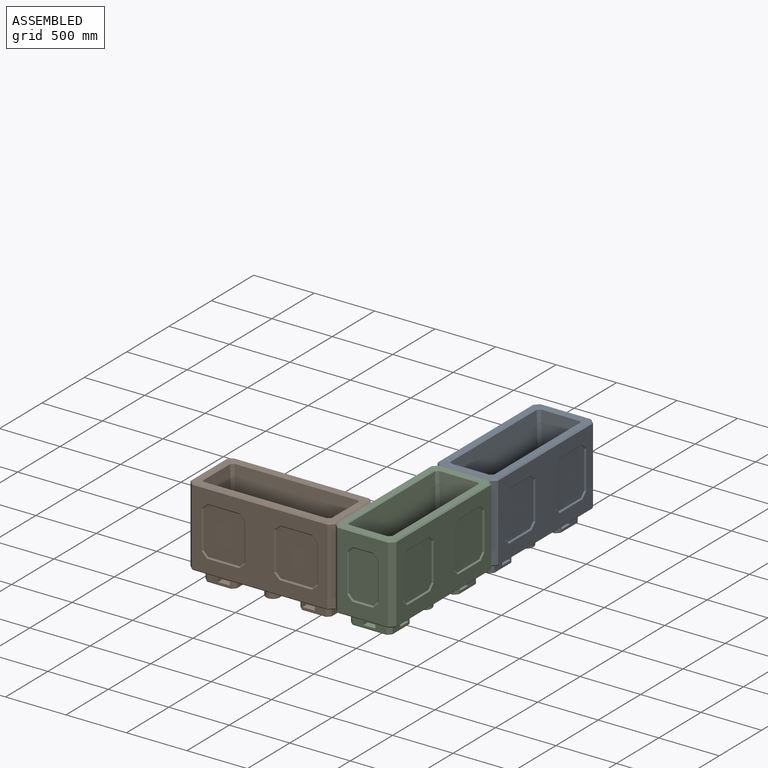
[diagram: assembled view]
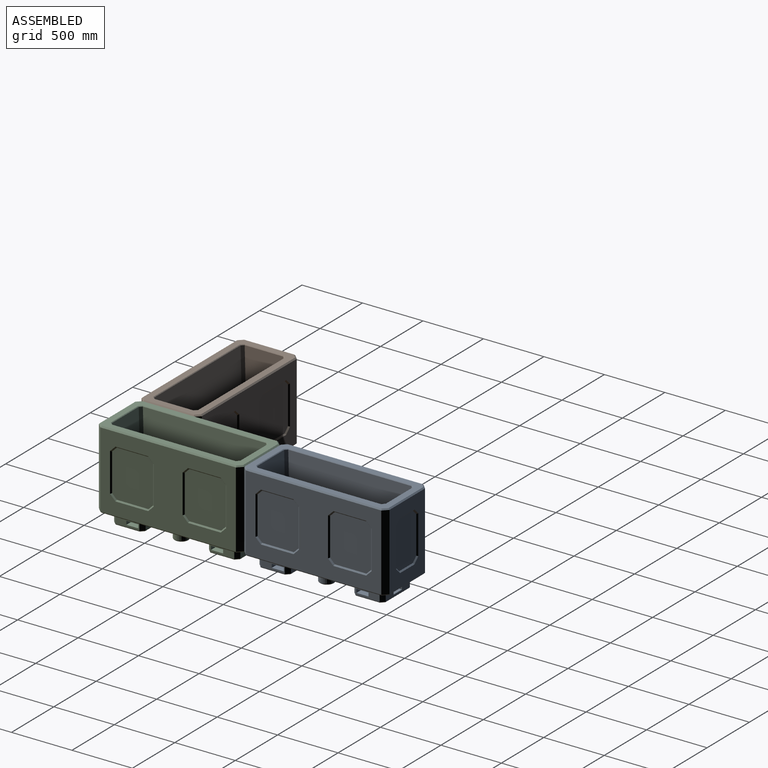
[diagram: assembled view, second angle]
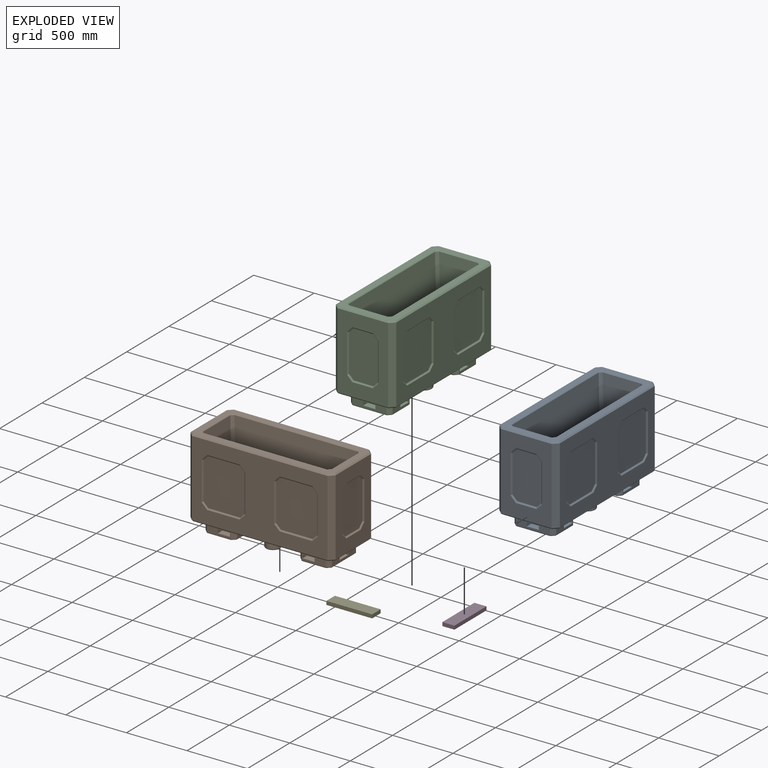
[diagram: exploded view]
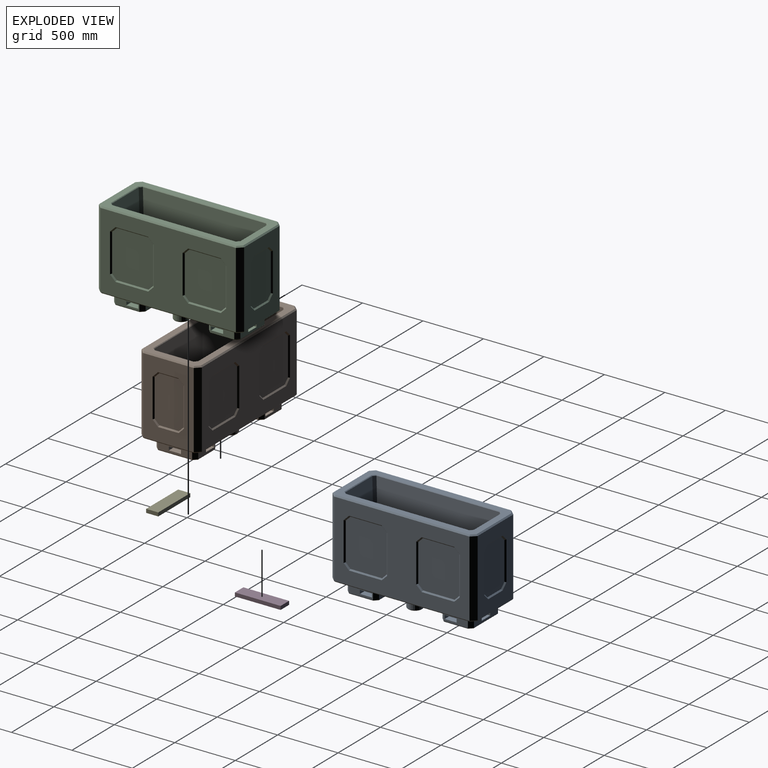
[diagram: exploded view, second angle]
ASSEMBLY  parts=5 mates=4
PART A: 211 faces, bbox 1200x500x750 mm
  f0: plane 200x60mm, normal (0,-1,0), area 9000mm2, adj f105,f106,f134,f154,f202,f203,f204,f205
  f1: plane 284x60mm, normal (-1,0,0), area 14040mm2, adj f106,f107,f129,f158,f197,f198,f199,f200
  f2: plane 200x60mm, normal (0,1,0), area 9000mm2, adj f103,f107,f137,f161,f192,f193,f194,f195
  f3: plane 200x60mm, normal (0,-1,0), area 9000mm2, adj f93,f94,f143,f152,f187,f188,f189,f190
  f4: plane 200x60mm, normal (0,1,0), area 9000mm2, adj f96,f97,f139,f147,f182,f183,f184,f185
  f5: plane 284x60mm, normal (1,0,0), area 14040mm2, adj f93,f97,f132,f151,f177,f178,f179,f180
  f6: plane 630x420mm, normal (1,0,0), area 162050mm2, adj f62,f63,f64,f65,f66,f67,f68,f69
  f7: plane 630x419.17mm, normal (-1,0,0), area 161528.1mm2, adj f53,f54,f55,f56,f57,f58,f59,f60
  f8: plane 1119.17x630mm, normal (0,1,0), area 417978.1mm2, adj f35,f36,f37,f38,f39,f40,f41,f42
  f9: plane 1120x630mm, normal (0,-1,0), area 418500mm2, adj f17,f18,f19,f20,f21,f22,f23,f24
  f10: plane 1180x480mm, normal (0,0,1), area 169250.2mm2, adj f75,f76,f77,f78,f79,f80,f81,f82
  f11: plane 1180x480mm, normal (0,0,-1), area 66674.5mm2, adj f83,f84,f85,f86,f87,f88,f89,f90
  f12: plane 1018.98x435.89mm, normal (0,-1,0.09), area 429172.6mm2, adj f109,f110,f167,f175
  f13: plane 435.89x318.98mm, normal (1,0,0.09), area 122883.7mm2, adj f110,f111,f164,f174
  f14: plane 1018.98x435.89mm, normal (0,1,0.09), area 429172.6mm2, adj f108,f111,f162,f170
  f15: plane 435.89x318.98mm, normal (-1,0,0.09), area 122883.7mm2, adj f108,f109,f166,f171
  f16: plane 962.93x262.93mm, normal (0,0,1), area 252881.5mm2, adj f108,f162,f163,f164,f165,f166,f167,f168
  f17: plane 320x10mm, normal (-0.71,-0.71,0), area 4466.9mm2, adj f9,f18,f24,f25
  f18: plane 49.14x49.14mm, normal (-0.5,-0.71,-0.5), area 841.4mm2, adj f9,f17,f19,f25
  f19: plane 270x10mm, normal (0,-0.71,-0.71), area 3759.8mm2, adj f9,f18,f20,f25
  f20: plane 49.14x49.14mm, normal (0.5,-0.71,-0.5), area 841.4mm2, adj f9,f19,f21,f25
  f21: plane 320x10mm, normal (0.71,-0.71,0), area 4466.9mm2, adj f9,f20,f22,f25
  f22: plane 49.14x49.14mm, normal (0.5,-0.71,0.5), area 841.4mm2, adj f9,f21,f23,f25
  f23: plane 270x10mm, normal (0,-0.71,0.71), area 3759.8mm2, adj f9,f22,f24,f25
  f24: plane 49.14x49.14mm, normal (-0.5,-0.71,0.5), area 841.4mm2, adj f9,f17,f23,f25
  f25: plane 390x340mm, normal (0,-1,0), area 129535.8mm2, adj f17,f18,f19,f20,f21,f22,f23,f24
  f26: plane 49.14x49.14mm, normal (0.5,-0.71,-0.5), area 841.4mm2, adj f9,f27,f33,f34
  f27: plane 320x10mm, normal (0.71,-0.71,0), area 4466.9mm2, adj f9,f26,f28,f34
  f28: plane 49.14x49.14mm, normal (0.5,-0.71,0.5), area 841.4mm2, adj f9,f27,f29,f34
  f29: plane 270x10mm, normal (0,-0.71,0.71), area 3759.8mm2, adj f9,f28,f30,f34
  f30: plane 49.14x49.14mm, normal (-0.5,-0.71,0.5), area 841.4mm2, adj f9,f29,f31,f34
  f31: plane 320x10mm, normal (-0.71,-0.71,0), area 4466.9mm2, adj f9,f30,f32,f34
  f32: plane 49.14x49.14mm, normal (-0.5,-0.71,-0.5), area 841.4mm2, adj f9,f31,f33,f34
  f33: plane 270x10mm, normal (0,-0.71,-0.71), area 3759.8mm2, adj f9,f26,f32,f34
  f34: plane 390x340mm, normal (0,-1,0), area 129535.8mm2, adj f26,f27,f28,f29,f30,f31,f32,f33
  f35: plane 49.14x49.14mm, normal (-0.5,0.71,-0.5), area 841.4mm2, adj f8,f36,f42,f43
  f36: plane 320x10mm, normal (-0.71,0.71,0), area 4466.9mm2, adj f8,f35,f37,f43
  f37: plane 49.14x49.14mm, normal (-0.5,0.71,0.5), area 841.4mm2, adj f8,f36,f38,f43
  f38: plane 270x10mm, normal (0,0.71,0.71), area 3759.8mm2, adj f8,f37,f39,f43
  f39: plane 49.14x49.14mm, normal (0.5,0.71,0.5), area 841.4mm2, adj f8,f38,f40,f43
  f40: plane 320x10mm, normal (0.71,0.71,0), area 4466.9mm2, adj f8,f39,f41,f43
  f41: plane 49.14x49.14mm, normal (0.5,0.71,-0.5), area 841.4mm2, adj f8,f40,f42,f43
  f42: plane 270x10mm, normal (0,0.71,-0.71), area 3759.8mm2, adj f8,f35,f41,f43
  f43: plane 390x340mm, normal (0,1,0), area 129535.8mm2, adj f35,f36,f37,f38,f39,f40,f41,f42
  f44: plane 49.14x49.14mm, normal (-0.5,0.71,-0.5), area 841.4mm2, adj f8,f45,f51,f52
  f45: plane 320x10mm, normal (-0.71,0.71,0), area 4466.9mm2, adj f8,f44,f46,f52
  f46: plane 49.14x49.14mm, normal (-0.5,0.71,0.5), area 841.4mm2, adj f8,f45,f47,f52
  f47: plane 270x10mm, normal (0,0.71,0.71), area 3759.8mm2, adj f8,f46,f48,f52
  f48: plane 49.14x49.14mm, normal (0.5,0.71,0.5), area 841.4mm2, adj f8,f47,f49,f52
  f49: plane 320x10mm, normal (0.71,0.71,0), area 4466.9mm2, adj f8,f48,f50,f52
  f50: plane 49.14x49.14mm, normal (0.5,0.71,-0.5), area 841.4mm2, adj f8,f49,f51,f52
  f51: plane 270x10mm, normal (0,0.71,-0.71), area 3759.8mm2, adj f8,f44,f50,f52
  f52: plane 390x340mm, normal (0,1,0), area 129535.8mm2, adj f44,f45,f46,f47,f48,f49,f50,f51
  f53: plane 170x10mm, normal (-0.71,0,-0.71), area 2345.6mm2, adj f7,f54,f60,f61
  f54: plane 49.14x49.14mm, normal (-0.71,-0.5,-0.5), area 841.4mm2, adj f7,f53,f55,f61
  f55: plane 320x10mm, normal (-0.71,-0.71,0), area 4466.9mm2, adj f7,f54,f56,f61
  f56: plane 49.14x49.14mm, normal (-0.71,-0.5,0.5), area 841.4mm2, adj f7,f55,f57,f61
  f57: plane 170x10mm, normal (-0.71,0,0.71), area 2345.6mm2, adj f7,f56,f58,f61
  f58: plane 49.14x49.14mm, normal (-0.71,0.5,0.5), area 841.4mm2, adj f7,f57,f59,f61
  f59: plane 320x10mm, normal (-0.71,0.71,0), area 4466.9mm2, adj f7,f58,f60,f61
  f60: plane 49.14x49.14mm, normal (-0.71,0.5,-0.5), area 841.4mm2, adj f7,f53,f59,f61
  f61: plane 390x240mm, normal (-1,0,0), area 90535.8mm2, adj f53,f54,f55,f56,f57,f58,f59,f60
  f62: plane 49.14x49.14mm, normal (0.71,0.5,-0.5), area 841.4mm2, adj f6,f63,f69,f70
  f63: plane 320x10mm, normal (0.71,0.71,0), area 4466.9mm2, adj f6,f62,f64,f70
  f64: plane 49.14x49.14mm, normal (0.71,0.5,0.5), area 841.4mm2, adj f6,f63,f65,f70
  f65: plane 170x10mm, normal (0.71,0,0.71), area 2345.6mm2, adj f6,f64,f66,f70
  f66: plane 49.14x49.14mm, normal (0.71,-0.5,0.5), area 841.4mm2, adj f6,f65,f67,f70
  f67: plane 320x10mm, normal (0.71,-0.71,0), area 4466.9mm2, adj f6,f66,f68,f70
  f68: plane 49.14x49.14mm, normal (0.71,-0.5,-0.5), area 841.4mm2, adj f6,f67,f69,f70
  f69: plane 170x10mm, normal (0.71,0,-0.71), area 2345.6mm2, adj f6,f62,f68,f70
  f70: plane 390x240mm, normal (1,0,0), area 90535.8mm2, adj f62,f63,f64,f65,f66,f67,f68,f69
  f71: plane 630x40mm, normal (0.71,-0.71,0), area 35638.2mm2, adj f6,f9,f75,f90
  f72: plane 630x40mm, normal (0.71,0.71,0), area 35638.2mm2, adj f6,f8,f78,f86
  f73: plane 630x40mm, normal (-0.71,-0.71,0), area 35638.2mm2, adj f7,f9,f79,f87
  f74: plane 630x38.83mm, normal (-0.71,0.71,0), area 34594.4mm2, adj f82,f83,f144,f145
  f75: plane 44.14x44.14mm, normal (0.5,-0.5,0.71), area 741.4mm2, adj f10,f71,f76,f77
  f76: plane 420x10mm, normal (0.71,0,0.71), area 5881.1mm2, adj f6,f10,f75,f78
  f77: plane 1120x10mm, normal (0,-0.71,0.71), area 15780.6mm2, adj f9,f10,f75,f79
  f78: plane 44.14x44.14mm, normal (0.5,0.5,0.71), area 741.4mm2, adj f10,f72,f76,f80
  f79: plane 44.14x44.14mm, normal (-0.5,-0.5,0.71), area 741.4mm2, adj f10,f73,f77,f81
  f80: plane 1119.94x10mm, normal (0,0.71,0.71), area 15780.6mm2, adj f8,f10,f78,f82,f144
  f81: plane 419.94x10mm, normal (-0.71,0,0.71), area 5881.1mm2, adj f7,f10,f79,f82,f145
  f82: plane 43.99x43.99mm, normal (-0.5,0.5,0.71), area 741.3mm2, adj f10,f74,f80,f81,f144,f145
  f83: plane 43.99x43.99mm, normal (-0.5,0.5,-0.71), area 741.3mm2, adj f11,f74,f84,f85,f144,f145
  f84: plane 1119.94x10mm, normal (0,0.71,-0.71), area 15780.6mm2, adj f8,f11,f83,f86,f144
  f85: plane 419.94x10mm, normal (-0.71,0,-0.71), area 5881.1mm2, adj f7,f11,f83,f87,f145
  f86: plane 44.14x44.14mm, normal (0.5,0.5,-0.71), area 741.4mm2, adj f11,f72,f84,f88
  f87: plane 44.14x44.14mm, normal (-0.5,-0.5,-0.71), area 741.4mm2, adj f11,f73,f85,f89
  f88: plane 420x10mm, normal (0.71,0,-0.71), area 5881.1mm2, adj f6,f11,f86,f90
  f89: plane 1120x10mm, normal (0,-0.71,-0.71), area 15780.6mm2, adj f9,f11,f87,f90
  f90: plane 44.14x44.14mm, normal (0.5,-0.5,-0.71), area 741.4mm2, adj f11,f71,f88,f89
  f91: plane 1110x410mm, normal (0,0,-1), area 206106.2mm2, adj f120,f121,f122,f123,f124,f125,f126,f127
  f92: plane 324x240mm, normal (0,0,-1), area 76594.3mm2, adj f146,f147,f148,f149,f150,f151,f152,f153
  f93: plane 60x30mm, normal (0.71,-0.71,0), area 2545.6mm2, adj f3,f5,f133,f153
  f94: plane 60x30mm, normal (-0.71,-0.71,0), area 2545.6mm2, adj f3,f95,f142,f150
  f95: plane 284x60mm, normal (-1,0,0), area 17040mm2, adj f94,f96,f141,f148
  f96: plane 60x30mm, normal (-0.71,0.71,0), area 2545.6mm2, adj f4,f95,f140,f146
  f97: plane 60x30mm, normal (0.71,0.71,0), area 2545.6mm2, adj f4,f5,f131,f149
  f98: plane 100x100mm, normal (0,0,-1), area 7854mm2, adj f209
  f99: cylinder r=60mm len=120mm, axis (0,0,-1), area 22619.5mm2, adj f208,f209
  f100: plane 100x100mm, normal (0,0,-1), area 7854mm2, adj f210
  f101: cylinder r=60mm len=120mm, axis (0,0,-1), area 22619.5mm2, adj f207,f210
  f102: plane 324x240mm, normal (0,0,-1), area 76594.3mm2, adj f154,f155,f156,f157,f158,f159,f160,f161
  f103: plane 60x30mm, normal (0.71,0.71,0), area 2545.6mm2, adj f2,f104,f138,f159
  f104: plane 284x60mm, normal (1,0,0), area 17040mm2, adj f103,f105,f136,f157
  f105: plane 60x30mm, normal (0.71,-0.71,0), area 2545.6mm2, adj f0,f104,f135,f155
  f106: plane 60x30mm, normal (-0.71,-0.71,0), area 2545.6mm2, adj f0,f1,f130,f156
  f107: plane 60x30mm, normal (-0.71,0.71,0), area 2545.6mm2, adj f1,f2,f128,f160
  f108: plane 445.21x58.46mm, normal (-0.7,0.7,0.12), area 12687mm2, adj f14,f15,f16,f162,f166,f169,f170,f171
  f109: plane 436.44x58.45mm, normal (-0.7,-0.7,0.12), area 12485.8mm2, adj f12,f15,f166,f167,f168,f171,f173,f175
  f110: plane 436.44x58.45mm, normal (0.7,-0.7,0.12), area 12485.8mm2, adj f12,f13,f164,f165,f167,f174,f175,f176
  f111: plane 436.44x58.45mm, normal (0.7,0.7,0.12), area 12485.8mm2, adj f13,f14,f162,f163,f164,f170,f172,f174
  f112: cylinder r=10mm len=52.93mm, axis (0.71,0.71,0), area 935.9mm2, adj f11,f113,f114,f120
  f113: cylinder r=10mm len=348.28mm, axis (0,1,0), area 5388mm2, adj f11,f112,f115,f121
  f114: cylinder r=10mm len=1048.28mm, axis (1,0,0), area 16383.6mm2, adj f11,f112,f116,f122
  f115: cylinder r=10mm len=52.93mm, axis (-0.71,0.71,0), area 935.9mm2, adj f11,f113,f117,f123
  f116: cylinder r=10mm len=52.93mm, axis (0.71,-0.71,0), area 935.9mm2, adj f11,f114,f118,f124
  f117: cylinder r=10mm len=1048.28mm, axis (-1,0,0), area 16383.6mm2, adj f11,f115,f119,f125
  f118: cylinder r=10mm len=348.28mm, axis (0,-1,0), area 5388mm2, adj f11,f116,f119,f126
  f119: cylinder r=10mm len=52.93mm, axis (-0.71,-0.71,0), area 935.9mm2, adj f11,f117,f118,f127
  f120: cylinder r=5mm len=43.54mm, axis (-0.71,-0.71,0), area 432.5mm2, adj f91,f112,f121,f122
  f121: cylinder r=5mm len=340mm, axis (0,-1,0), area 2658.5mm2, adj f91,f113,f120,f123
  f122: cylinder r=5mm len=1040mm, axis (-1,0,0), area 8156.3mm2, adj f91,f114,f120,f124
  f123: cylinder r=5mm len=43.54mm, axis (0.71,-0.71,0), area 432.5mm2, adj f91,f115,f121,f125
  f124: cylinder r=5mm len=43.54mm, axis (-0.71,0.71,0), area 432.5mm2, adj f91,f116,f122,f126
  f125: cylinder r=5mm len=1040mm, axis (1,0,0), area 8156.3mm2, adj f91,f117,f123,f127
  f126: cylinder r=5mm len=340mm, axis (0,1,0), area 2658.5mm2, adj f91,f118,f124,f127
  f127: cylinder r=5mm len=43.54mm, axis (0.71,0.71,0), area 432.5mm2, adj f91,f119,f125,f126
  f128: cylinder r=15mm len=49.39mm, axis (-0.71,-0.71,0), area 1106mm2, adj f91,f107,f129,f137
  f129: cylinder r=15mm len=296.43mm, axis (0,-1,0), area 6798mm2, adj f1,f91,f128,f130
  f130: cylinder r=15mm len=49.39mm, axis (0.71,-0.71,0), area 1106mm2, adj f91,f106,f129,f134
  f131: cylinder r=15mm len=49.39mm, axis (-0.71,0.71,0), area 1106mm2, adj f91,f97,f132,f139
  f132: cylinder r=15mm len=296.43mm, axis (0,1,0), area 6798mm2, adj f5,f91,f131,f133
  f133: cylinder r=15mm len=49.39mm, axis (0.71,0.71,0), area 1106mm2, adj f91,f93,f132,f143
  f134: cylinder r=15mm len=212.43mm, axis (1,0,0), area 4818.8mm2, adj f0,f91,f130,f135
  f135: cylinder r=15mm len=49.39mm, axis (0.71,0.71,0), area 1106mm2, adj f91,f105,f134,f136
  f136: cylinder r=15mm len=296.43mm, axis (0,1,0), area 6798mm2, adj f91,f104,f135,f138
  f137: cylinder r=15mm len=212.43mm, axis (-1,0,0), area 4818.8mm2, adj f2,f91,f128,f138
  f138: cylinder r=15mm len=49.39mm, axis (-0.71,0.71,0), area 1106mm2, adj f91,f103,f136,f137
  f139: cylinder r=15mm len=212.43mm, axis (-1,0,0), area 4818.8mm2, adj f4,f91,f131,f140
  f140: cylinder r=15mm len=49.39mm, axis (-0.71,-0.71,0), area 1106mm2, adj f91,f96,f139,f141
  f141: cylinder r=15mm len=296.43mm, axis (0,-1,0), area 6798mm2, adj f91,f95,f140,f142
  f142: cylinder r=15mm len=49.39mm, axis (0.71,-0.71,0), area 1106mm2, adj f91,f94,f141,f143
  f143: cylinder r=15mm len=212.43mm, axis (1,0,0), area 4818.8mm2, adj f3,f91,f133,f142
  f144: cylinder r=2mm len=630.3mm, axis (0,0,1), area 989.8mm2, adj f8,f74,f80,f82,f83,f84
  f145: cylinder r=2mm len=630.3mm, axis (0,0,-1), area 989.8mm2, adj f7,f74,f81,f82,f83,f85
  f146: cylinder r=10mm len=37.07mm, axis (-0.71,-0.71,0), area 619.1mm2, adj f92,f96,f147,f148
  f147: cylinder r=10mm len=200mm, axis (-1,0,0), area 3094.3mm2, adj f4,f92,f146,f149
  f148: cylinder r=10mm len=284mm, axis (0,-1,0), area 4413.8mm2, adj f92,f95,f146,f150
  f149: cylinder r=10mm len=37.07mm, axis (-0.71,0.71,0), area 619.1mm2, adj f92,f97,f147,f151
  f150: cylinder r=10mm len=37.07mm, axis (0.71,-0.71,0), area 619.1mm2, adj f92,f94,f148,f152
  f151: cylinder r=10mm len=284mm, axis (0,1,0), area 4413.8mm2, adj f5,f92,f149,f153
  f152: cylinder r=10mm len=200mm, axis (1,0,0), area 3094.3mm2, adj f3,f92,f150,f153
  f153: cylinder r=10mm len=37.07mm, axis (0.71,0.71,0), area 619.1mm2, adj f92,f93,f151,f152
  f154: cylinder r=10mm len=200mm, axis (1,0,0), area 3094.3mm2, adj f0,f102,f155,f156
  f155: cylinder r=10mm len=37.07mm, axis (0.71,0.71,0), area 619.1mm2, adj f102,f105,f154,f157
  f156: cylinder r=10mm len=37.07mm, axis (0.71,-0.71,0), area 619.1mm2, adj f102,f106,f154,f158
  f157: cylinder r=10mm len=284mm, axis (0,1,0), area 4413.8mm2, adj f102,f104,f155,f159
  f158: cylinder r=10mm len=284mm, axis (0,-1,0), area 4413.8mm2, adj f1,f102,f156,f160
  f159: cylinder r=10mm len=37.07mm, axis (-0.71,0.71,0), area 619.1mm2, adj f102,f103,f157,f161
  f160: cylinder r=10mm len=37.07mm, axis (-0.71,-0.71,0), area 619.1mm2, adj f102,f107,f158,f161
  f161: cylinder r=10mm len=200mm, axis (-1,0,0), area 3094.3mm2, adj f2,f102,f159,f160
  f162: cylinder r=10mm len=951.07mm, axis (-1,0,0), area 14003.1mm2, adj f14,f16,f108,f111,f163
  f163: cylinder r=10mm len=27.08mm, axis (-0.71,0.71,0), area 364.4mm2, adj f16,f111,f162,f164
  f164: cylinder r=10mm len=242.71mm, axis (0,1,0), area 3553.5mm2, adj f13,f16,f110,f111,f163,f165
  f165: cylinder r=10mm len=27.08mm, axis (0.71,0.71,0), area 364.4mm2, adj f16,f110,f164,f167
  f166: cylinder r=10mm len=251.07mm, axis (0,-1,0), area 3618.4mm2, adj f15,f16,f108,f109,f168
  f167: cylinder r=10mm len=942.71mm, axis (1,0,0), area 13938.2mm2, adj f12,f16,f109,f110,f165,f168
  f168: cylinder r=10mm len=27.08mm, axis (0.71,-0.71,0), area 364.4mm2, adj f16,f109,f166,f167
  f169: plane 25.69x25.69mm, normal (-0.47,0.47,0.75), area 223.4mm2, adj f10,f108,f170,f171
  f170: plane 1023.49x5.44mm, normal (0,0.68,0.74), area 7527.4mm2, adj f10,f14,f108,f111,f169,f172
  f171: plane 323.49x5.44mm, normal (-0.68,0,0.74), area 2366.4mm2, adj f10,f15,f108,f109,f169,f173
  f172: plane 25.69x25.69mm, normal (0.47,0.47,0.75), area 223.4mm2, adj f10,f111,f170,f174
  f173: plane 25.69x25.69mm, normal (-0.47,-0.47,0.75), area 223.4mm2, adj f10,f109,f171,f175
  f174: plane 323.49x5.44mm, normal (0.68,0,0.74), area 2366.4mm2, adj f10,f13,f110,f111,f172,f176
  f175: plane 1023.49x5.44mm, normal (0,-0.68,0.74), area 7527.4mm2, adj f10,f12,f109,f110,f173,f176
  f176: plane 25.69x25.69mm, normal (0.47,-0.47,0.75), area 223.4mm2, adj f10,f110,f174,f175
  f177: plane 110x100mm, normal (0,0,-1), area 11000mm2, adj f5,f178,f180,f181
  f178: plane 110x30mm, normal (0,1,0), area 3300mm2, adj f5,f177,f179,f181
  f179: plane 110x100mm, normal (0,0,1), area 11000mm2, adj f5,f178,f180,f181
  f180: plane 110x30mm, normal (0,-1,0), area 3300mm2, adj f5,f177,f179,f181
  f181: plane 100x30mm, normal (1,0,0), area 3000mm2, adj f177,f178,f179,f180
  f182: plane 110x100mm, normal (0,0,-1), area 11000mm2, adj f4,f183,f185,f186
  f183: plane 110x30mm, normal (-1,0,0), area 3300mm2, adj f4,f182,f184,f186
  f184: plane 110x100mm, normal (0,0,1), area 11000mm2, adj f4,f183,f185,f186
  f185: plane 110x30mm, normal (1,0,0), area 3300mm2, adj f4,f182,f184,f186
  f186: plane 100x30mm, normal (0,1,0), area 3000mm2, adj f182,f183,f184,f185
  f187: plane 110x100mm, normal (0,0,-1), area 11000mm2, adj f3,f188,f190,f191
  f188: plane 110x30mm, normal (1,0,0), area 3300mm2, adj f3,f187,f189,f191
  f189: plane 110x100mm, normal (0,0,1), area 11000mm2, adj f3,f188,f190,f191
  f190: plane 110x30mm, normal (-1,0,0), area 3300mm2, adj f3,f187,f189,f191
  f191: plane 100x30mm, normal (0,-1,0), area 3000mm2, adj f187,f188,f189,f190
  f192: plane 110x100mm, normal (0,0,-1), area 11000mm2, adj f2,f193,f195,f196
  f193: plane 110x30mm, normal (-1,0,0), area 3300mm2, adj f2,f192,f194,f196
  f194: plane 110x100mm, normal (0,0,1), area 11000mm2, adj f2,f193,f195,f196
  f195: plane 110x30mm, normal (1,0,0), area 3300mm2, adj f2,f192,f194,f196
  f196: plane 100x30mm, normal (0,1,0), area 3000mm2, adj f192,f193,f194,f195
  f197: plane 110x100mm, normal (0,0,-1), area 11000mm2, adj f1,f198,f200,f201
  f198: plane 110x30mm, normal (0,-1,0), area 3300mm2, adj f1,f197,f199,f201
  f199: plane 110x100mm, normal (0,0,1), area 11000mm2, adj f1,f198,f200,f201
  f200: plane 110x30mm, normal (0,1,0), area 3300mm2, adj f1,f197,f199,f201
  f201: plane 100x30mm, normal (-1,0,0), area 3000mm2, adj f197,f198,f199,f200
  f202: plane 110x100mm, normal (0,0,-1), area 11000mm2, adj f0,f203,f205,f206
  f203: plane 110x30mm, normal (1,0,0), area 3300mm2, adj f0,f202,f204,f206
  f204: plane 110x100mm, normal (0,0,1), area 11000mm2, adj f0,f203,f205,f206
  f205: plane 110x30mm, normal (-1,0,0), area 3300mm2, adj f0,f202,f204,f206
  f206: plane 100x30mm, normal (0,-1,0), area 3000mm2, adj f202,f203,f204,f205
  f207: torus R=75mm, axis (0,0,-1), area 9689.6mm2, adj f91,f101
  f208: torus R=75mm, axis (0,0,-1), area 9689.6mm2, adj f91,f99
  f209: torus R=50mm, axis (0,0,1), area 5563.1mm2, adj f98,f99
  f210: torus R=50mm, axis (0,0,1), area 5563.1mm2, adj f100,f101
PART B: same geometry as A
PART C: same geometry as A
PART D: 6 faces, bbox 100x378x30 mm
  f0: plane 378x100mm, normal (0,0,1), area 37800mm2, adj f1,f3,f4,f5
  f1: plane 378x30mm, normal (-1,0,0), area 11340mm2, adj f0,f2,f4,f5
  f2: plane 378x100mm, normal (0,0,-1), area 37800mm2, adj f1,f3,f4,f5
  f3: plane 378x30mm, normal (1,0,0), area 11340mm2, adj f0,f2,f4,f5
  f4: plane 100x30mm, normal (0,-1,0), area 3000mm2, adj f0,f1,f2,f3
  f5: plane 100x30mm, normal (0,1,0), area 3000mm2, adj f0,f1,f2,f3
PART E: same geometry as D
PLACE A rot(axis=(0,0,-1),90deg) t=(1128.52,833.62,-136.46)mm fixed
PLACE B t=(29.59,-465.31,-136.46)mm
PLACE C rot(axis=(0,0,1),90deg) t=(628.52,-362.24,-136.46)mm
PLACE D t=(913.84,424.69,-442.32)mm
PLACE E rot(axis=(0,0,-1),90deg) t=(816.52,-750.64,-442.32)mm
MATE fastened E.f4 <-> B.f181  axis (-1,0,0) through (438.52,-715.31,-407.29)mm
MATE fastened C.f196 <-> E.f5  axis (-1,0,0) through (816.52,-715.31,-407.29)mm
MATE fastened C.f181 <-> D.f4  axis (0,1,0) through (878.52,46.69,-407.29)mm
MATE fastened A.f181 <-> D.f5  axis (0,-1,0) through (878.52,424.69,-407.29)mm
